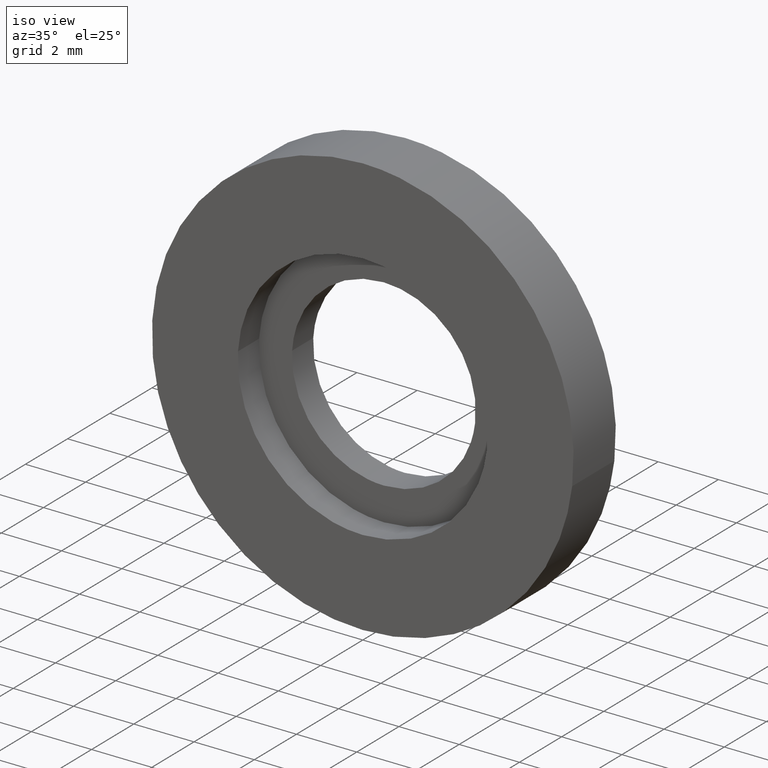
[diagram: clean part render]
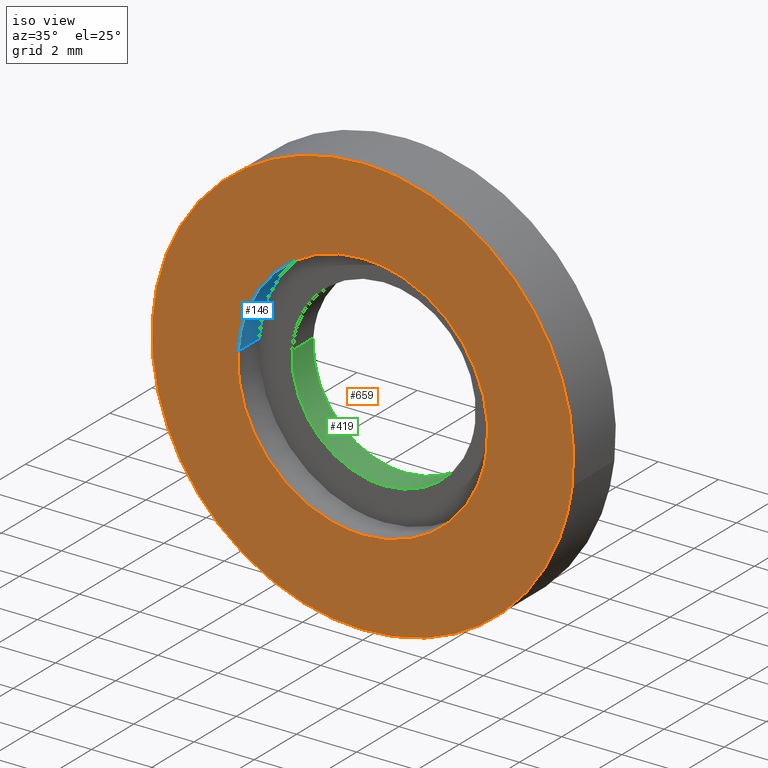
[diagram: same view with three faces highlighted in distinct colors, each labeled with its STEP entity id]
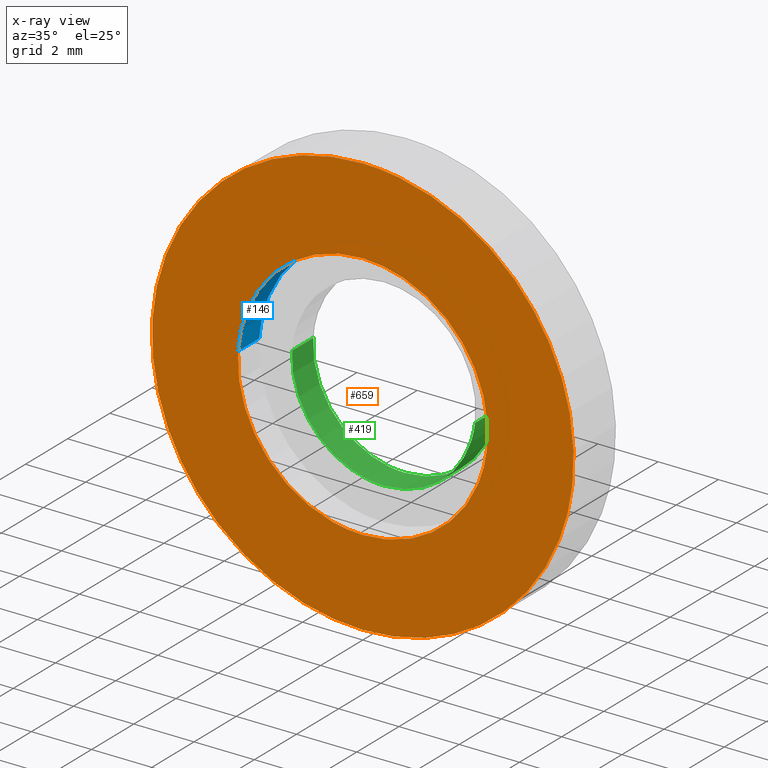
[diagram: x-ray of the same camera — body ghosted, the three highlighted faces saturated]
A machine part, iso view with three faces highlighted in distinct colors.
The next image is the same camera in x-ray (body ghosted, the three faces saturated) — at least one of them is partly hidden behind the body in this view.
Their STEP definitions:

[orange] entity #659 — the highlighted face is a freeform B-spline surface patch.
#85=CARTESIAN_POINT('',(4.120992077924378,-2.0,-0.489837619692699));
#86=VERTEX_POINT('',#85);
#92=CARTESIAN_POINT('',(0.0,-2.0,4.150002000000000));
#93=VERTEX_POINT('',#92);
#94=CARTESIAN_POINT('',(4.120992077924378,-2.000000000000000,-0.489837619692699));
#95=CARTESIAN_POINT('',(4.150002000000000,-2.000000000000000,-0.245777845111303));
#96=CARTESIAN_POINT('',(4.150002000000000,-2.0,-2.795203E-016));
#97=CARTESIAN_POINT('',(4.150002000000000,-2.0,4.150002000000000));
#98=CARTESIAN_POINT('',(0.0,-2.0,4.150002000000000));
#106=(BOUNDED_CURVE()B_SPLINE_CURVE(2,(#94,#95,#96,#97,#98),.UNSPECIFIED.,.F.,.U.)B_SPLINE_CURVE_WITH_KNOTS((3,2,3),(0.229562665862392,0.250000000000000,0.500000000000000),.UNSPECIFIED.)CURVE()GEOMETRIC_REPRESENTATION_ITEM()RATIONAL_B_SPLINE_CURVE((0.956027131195729,0.976056173681880,1.0,0.707106781186547,1.0))REPRESENTATION_ITEM(''));
#107=EDGE_CURVE('',#86,#93,#106,.T.);
#109=CARTESIAN_POINT('',(-4.142261716955668,-2.0,0.253346537813635));
#110=VERTEX_POINT('',#109);
#111=CARTESIAN_POINT('',(0.0,-2.0,4.150002000000000));
#112=CARTESIAN_POINT('',(-3.903936802249314,-2.000000000000000,4.150001999999999));
#113=CARTESIAN_POINT('',(-4.142261716955668,-2.000000000000000,0.253346537813635));
#121=(BOUNDED_CURVE()B_SPLINE_CURVE(2,(#111,#112,#113),.UNSPECIFIED.,.F.,.U.)B_SPLINE_CURVE_WITH_KNOTS((3,3),(0.500000000000000,0.739333171490855),.UNSPECIFIED.)CURVE()GEOMETRIC_REPRESENTATION_ITEM()RATIONAL_B_SPLINE_CURVE((1.0,0.719603748132846,0.976072490133807))REPRESENTATION_ITEM(''));
#122=EDGE_CURVE('',#93,#110,#121,.T.);
#196=CARTESIAN_POINT('',(0.0,-2.0,-4.150002000000000));
#197=VERTEX_POINT('',#196);
#198=CARTESIAN_POINT('',(-4.142261716955668,-2.000000000000000,0.253346537813635));
#199=CARTESIAN_POINT('',(-4.150002000000000,-2.000000000000000,0.126791510075858));
#200=CARTESIAN_POINT('',(-4.150002000000000,-2.0,-2.795203E-016));
#201=CARTESIAN_POINT('',(-4.150002000000000,-2.0,-4.150002000000000));
#202=CARTESIAN_POINT('',(0.0,-2.0,-4.150002000000000));
#210=(BOUNDED_CURVE()B_SPLINE_CURVE(2,(#198,#199,#200,#201,#202),.UNSPECIFIED.,.F.,.U.)B_SPLINE_CURVE_WITH_KNOTS((3,2,3),(0.739333171490855,0.750000000000000,1.0),.UNSPECIFIED.)CURVE()GEOMETRIC_REPRESENTATION_ITEM()RATIONAL_B_SPLINE_CURVE((0.976072490133807,0.987503033053701,1.0,0.707106781186547,1.0))REPRESENTATION_ITEM(''));
#211=EDGE_CURVE('',#110,#197,#210,.T.);
#213=CARTESIAN_POINT('',(0.0,-2.0,-4.150002000000000));
#214=CARTESIAN_POINT('',(3.685930283623234,-2.000000000000000,-4.150001999999999));
#215=CARTESIAN_POINT('',(4.120992077924378,-2.000000000000000,-0.489837619692699));
#223=(BOUNDED_CURVE()B_SPLINE_CURVE(2,(#213,#214,#215),.UNSPECIFIED.,.F.,.U.)B_SPLINE_CURVE_WITH_KNOTS((3,3),(0.0,0.229562665862392),.UNSPECIFIED.)CURVE()GEOMETRIC_REPRESENTATION_ITEM()RATIONAL_B_SPLINE_CURVE((1.0,0.731050607504668,0.956027131195729))REPRESENTATION_ITEM(''));
#224=EDGE_CURVE('',#197,#86,#223,.T.);
#476=CARTESIAN_POINT('',(-6.986943739989564,-2.0,0.427337307304794));
#477=VERTEX_POINT('',#476);
#483=CARTESIAN_POINT('',(0.0,-2.0,7.0));
#484=VERTEX_POINT('',#483);
#485=CARTESIAN_POINT('',(0.0,-2.0,7.0));
#486=CARTESIAN_POINT('',(-6.584944800046739,-2.0,6.999999999999999));
#487=CARTESIAN_POINT('',(-6.986943739989564,-2.0,0.427337307304794));
#495=(BOUNDED_CURVE()B_SPLINE_CURVE(2,(#485,#486,#487),.UNSPECIFIED.,.F.,.U.)B_SPLINE_CURVE_WITH_KNOTS((3,3),(0.500000000000000,0.739333023226263),.UNSPECIFIED.)CURVE()GEOMETRIC_REPRESENTATION_ITEM()RATIONAL_B_SPLINE_CURVE((1.0,0.719603921835620,0.976072172374189))REPRESENTATION_ITEM(''));
#496=EDGE_CURVE('',#484,#477,#495,.T.);
#498=CARTESIAN_POINT('',(6.951067204199181,-2.0,-0.826235270783800));
#499=VERTEX_POINT('',#498);
#500=CARTESIAN_POINT('',(6.951067204199181,-2.000000000000000,-0.826235270783800));
#501=CARTESIAN_POINT('',(7.0,-2.000000000000000,-0.414566628547696));
#502=CARTESIAN_POINT('',(7.0,-2.0,-2.795203E-016));
#503=CARTESIAN_POINT('',(6.999999999999999,-2.0,6.999999999999999));
#504=CARTESIAN_POINT('',(0.0,-2.0,7.0));
#512=(BOUNDED_CURVE()B_SPLINE_CURVE(2,(#500,#501,#502,#503,#504),.UNSPECIFIED.,.F.,.U.)B_SPLINE_CURVE_WITH_KNOTS((3,2,3),(0.229562579808786,0.250000000000000,0.500000000000000),.UNSPECIFIED.)CURVE()GEOMETRIC_REPRESENTATION_ITEM()RATIONAL_B_SPLINE_CURVE((0.956026962526900,0.976056072863809,1.0,0.707106781186547,1.0))REPRESENTATION_ITEM(''));
#513=EDGE_CURVE('',#499,#484,#512,.T.);
#557=CARTESIAN_POINT('',(0.0,-2.0,-7.0));
#558=VERTEX_POINT('',#557);
#559=CARTESIAN_POINT('',(0.0,-2.0,-7.0));
#560=CARTESIAN_POINT('',(6.217225619455447,-2.000000000000000,-7.0));
#561=CARTESIAN_POINT('',(6.951067204199181,-2.000000000000000,-0.826235270783800));
#569=(BOUNDED_CURVE()B_SPLINE_CURVE(2,(#559,#560,#561),.UNSPECIFIED.,.F.,.U.)B_SPLINE_CURVE_WITH_KNOTS((3,3),(0.0,0.229562579808786),.UNSPECIFIED.)CURVE()GEOMETRIC_REPRESENTATION_ITEM()RATIONAL_B_SPLINE_CURVE((1.0,0.731050708322738,0.956026962526900))REPRESENTATION_ITEM(''));
#570=EDGE_CURVE('',#558,#499,#569,.T.);
#572=CARTESIAN_POINT('',(-6.986943739989564,-2.0,0.427337307304794));
#573=CARTESIAN_POINT('',(-7.0,-2.000000000000000,0.213868104908519));
#574=CARTESIAN_POINT('',(-7.0,-2.0,-2.795203E-016));
#575=CARTESIAN_POINT('',(-6.999999999999999,-2.0,-6.999999999999999));
#576=CARTESIAN_POINT('',(0.0,-2.0,-7.0));
#584=(BOUNDED_CURVE()B_SPLINE_CURVE(2,(#572,#573,#574,#575,#576),.UNSPECIFIED.,.F.,.U.)B_SPLINE_CURVE_WITH_KNOTS((3,2,3),(0.739333023226263,0.750000000000000,1.0),.UNSPECIFIED.)CURVE()GEOMETRIC_REPRESENTATION_ITEM()RATIONAL_B_SPLINE_CURVE((0.976072172374189,0.987502859350927,1.0,0.707106781186547,1.0))REPRESENTATION_ITEM(''));
#585=EDGE_CURVE('',#477,#558,#584,.T.);
#642=CARTESIAN_POINT('',(-7.699130124775172,-2.0,7.699299972865284));
#643=CARTESIAN_POINT('',(-7.699130124775172,-2.0,-7.699300348374545));
#644=CARTESIAN_POINT('',(7.699172682491543,-2.0,7.699299972865285));
#645=CARTESIAN_POINT('',(7.699172682491543,-2.0,-7.699300348374545));
#646=B_SPLINE_SURFACE_WITH_KNOTS('',1,1,((#642,#644),(#643,#645)),.UNSPECIFIED.,.F.,.F.,.U.,(2,2),(2,2),(0.0,15.398600321239829),(0.0,15.398302807266720),.UNSPECIFIED.);
#647=ORIENTED_EDGE('',*,*,#570,.T.);
#648=ORIENTED_EDGE('',*,*,#513,.T.);
#649=ORIENTED_EDGE('',*,*,#496,.T.);
#650=ORIENTED_EDGE('',*,*,#585,.T.);
#651=EDGE_LOOP('',(#647,#648,#649,#650));
#652=FACE_OUTER_BOUND('',#651,.T.);
#653=ORIENTED_EDGE('',*,*,#122,.F.);
#654=ORIENTED_EDGE('',*,*,#107,.F.);
#655=ORIENTED_EDGE('',*,*,#224,.F.);
#656=ORIENTED_EDGE('',*,*,#211,.F.);
#657=EDGE_LOOP('',(#653,#654,#655,#656));
#658=FACE_BOUND('',#657,.T.);
#659=ADVANCED_FACE('',(#652,#658),#646,.T.);

[blue] entity #146 — the highlighted face is a freeform B-spline surface patch.
#44=CARTESIAN_POINT('',(4.120991520428268,-0.975000000000000,-0.489842309894017));
#45=CARTESIAN_POINT('',(4.135010596886946,-0.975000000000000,-0.371901303077065));
#46=CARTESIAN_POINT('',(4.142261409720344,-0.975000000000000,-0.253351561166736));
#47=CARTESIAN_POINT('',(4.395612970887080,-0.975000000000000,3.888909848553608));
#48=CARTESIAN_POINT('',(0.253351561166736,-0.975000000000000,4.142261409720344));
#49=CARTESIAN_POINT('',(-3.888909848553608,-0.975000000000000,4.395612970887080));
#50=CARTESIAN_POINT('',(-4.142261409720344,-0.975000000000000,0.253351561166735));
#51=CARTESIAN_POINT('',(4.120991520428268,-2.025624999999999,-0.489842309894017));
#52=CARTESIAN_POINT('',(4.135010596886946,-2.025625000000000,-0.371901303077065));
#53=CARTESIAN_POINT('',(4.142261409720344,-2.025625000000000,-0.253351561166736));
#54=CARTESIAN_POINT('',(4.395612970887080,-2.025624999999999,3.888909848553608));
#55=CARTESIAN_POINT('',(0.253351561166736,-2.025625000000000,4.142261409720344));
#56=CARTESIAN_POINT('',(-3.888909848553608,-2.025624999999999,4.395612970887080));
#57=CARTESIAN_POINT('',(-4.142261409720344,-2.025625000000000,0.253351561166735));
#65=(BOUNDED_SURFACE()B_SPLINE_SURFACE(2,1,((#44,#51),(#45,#52),(#46,#53),(#47,#54),(#48,#55),(#49,#56),(#50,#57)),.UNSPECIFIED.,.F.,.F.,.U.)B_SPLINE_SURFACE_WITH_KNOTS((3,2,2,3),(2,2),(0.0,0.275037937964076,7.150986387065953,14.026934836167831),(0.0,1.0),.UNSPECIFIED.)GEOMETRIC_REPRESENTATION_ITEM()RATIONAL_B_SPLINE_SURFACE(((0.977505800795127,0.977505800795127),(0.988284271247462,0.988284271247462),(1.0,1.0),(0.707106781186548,0.707106781186548),(1.0,1.0),(0.707106781186548,0.707106781186548),(1.0,1.0)))REPRESENTATION_ITEM('')SURFACE());
#66=CARTESIAN_POINT('',(4.120992084721502,-1.000000000000042,-0.489837562508097));
#67=VERTEX_POINT('',#66);
#68=CARTESIAN_POINT('',(0.0,-1.0,4.150002000000000));
#69=VERTEX_POINT('',#68);
#70=CARTESIAN_POINT('',(4.120992084721502,-1.000000000000042,-0.489837562508097));
#71=CARTESIAN_POINT('',(4.150002000000001,-1.0,-0.245777816216738));
#72=CARTESIAN_POINT('',(4.150002000000000,-1.0,-2.795203E-016));
#73=CARTESIAN_POINT('',(4.150002000000000,-1.0,4.150002000000000));
#74=CARTESIAN_POINT('',(0.0,-1.0,4.150002000000000));
#82=(BOUNDED_CURVE()B_SPLINE_CURVE(2,(#70,#71,#72,#73,#74),.UNSPECIFIED.,.F.,.U.)B_SPLINE_CURVE_WITH_KNOTS((3,2,3),(0.229562668207552,0.250000000000000,0.500000000000000),.UNSPECIFIED.)CURVE()GEOMETRIC_REPRESENTATION_ITEM()RATIONAL_B_SPLINE_CURVE((0.956027135792348,0.976056176429406,1.0,0.707106781186547,1.0))REPRESENTATION_ITEM(''));
#83=EDGE_CURVE('',#67,#69,#82,.T.);
#84=ORIENTED_EDGE('',*,*,#83,.F.);
#85=CARTESIAN_POINT('',(4.120992077924378,-2.0,-0.489837619692699));
#86=VERTEX_POINT('',#85);
#87=CARTESIAN_POINT('',(4.120992084721502,-1.000000000000042,-0.489837562508097));
#88=CARTESIAN_POINT('',(4.120992077924378,-2.0,-0.489837619692699));
#89=QUASI_UNIFORM_CURVE('',1,(#87,#88),.UNSPECIFIED.,.F.,.U.);
#90=EDGE_CURVE('',#67,#86,#89,.T.);
#91=ORIENTED_EDGE('',*,*,#90,.T.);
#92=CARTESIAN_POINT('',(0.0,-2.0,4.150002000000000));
#93=VERTEX_POINT('',#92);
#94=CARTESIAN_POINT('',(4.120992077924378,-2.000000000000000,-0.489837619692699));
#95=CARTESIAN_POINT('',(4.150002000000000,-2.000000000000000,-0.245777845111303));
#96=CARTESIAN_POINT('',(4.150002000000000,-2.0,-2.795203E-016));
#97=CARTESIAN_POINT('',(4.150002000000000,-2.0,4.150002000000000));
#98=CARTESIAN_POINT('',(0.0,-2.0,4.150002000000000));
#106=(BOUNDED_CURVE()B_SPLINE_CURVE(2,(#94,#95,#96,#97,#98),.UNSPECIFIED.,.F.,.U.)B_SPLINE_CURVE_WITH_KNOTS((3,2,3),(0.229562665862392,0.250000000000000,0.500000000000000),.UNSPECIFIED.)CURVE()GEOMETRIC_REPRESENTATION_ITEM()RATIONAL_B_SPLINE_CURVE((0.956027131195729,0.976056173681880,1.0,0.707106781186547,1.0))REPRESENTATION_ITEM(''));
#107=EDGE_CURVE('',#86,#93,#106,.T.);
#108=ORIENTED_EDGE('',*,*,#107,.T.);
#109=CARTESIAN_POINT('',(-4.142261716955668,-2.0,0.253346537813635));
#110=VERTEX_POINT('',#109);
#111=CARTESIAN_POINT('',(0.0,-2.0,4.150002000000000));
#112=CARTESIAN_POINT('',(-3.903936802249314,-2.000000000000000,4.150001999999999));
#113=CARTESIAN_POINT('',(-4.142261716955668,-2.000000000000000,0.253346537813635));
#121=(BOUNDED_CURVE()B_SPLINE_CURVE(2,(#111,#112,#113),.UNSPECIFIED.,.F.,.U.)B_SPLINE_CURVE_WITH_KNOTS((3,3),(0.500000000000000,0.739333171490855),.UNSPECIFIED.)CURVE()GEOMETRIC_REPRESENTATION_ITEM()RATIONAL_B_SPLINE_CURVE((1.0,0.719603748132846,0.976072490133807))REPRESENTATION_ITEM(''));
#122=EDGE_CURVE('',#93,#110,#121,.T.);
#123=ORIENTED_EDGE('',*,*,#122,.T.);
#124=CARTESIAN_POINT('',(-4.142261720703038,-0.999999999999970,0.253346476542214));
#125=VERTEX_POINT('',#124);
#126=CARTESIAN_POINT('',(-4.142261720703038,-0.999999999999970,0.253346476542214));
#127=CARTESIAN_POINT('',(-4.142261716955668,-2.0,0.253346537813635));
#128=QUASI_UNIFORM_CURVE('',1,(#126,#127),.UNSPECIFIED.,.F.,.U.);
#129=EDGE_CURVE('',#125,#110,#128,.T.);
#130=ORIENTED_EDGE('',*,*,#129,.F.);
#131=CARTESIAN_POINT('',(0.0,-1.0,4.150002000000000));
#132=CARTESIAN_POINT('',(-3.903936860103388,-1.0,4.150001999999998));
#133=CARTESIAN_POINT('',(-4.142261720703038,-0.999999999999970,0.253346476542214));
#141=(BOUNDED_CURVE()B_SPLINE_CURVE(2,(#131,#132,#133),.UNSPECIFIED.,.F.,.U.)B_SPLINE_CURVE_WITH_KNOTS((3,3),(0.500000000000000,0.739333174043130),.UNSPECIFIED.)CURVE()GEOMETRIC_REPRESENTATION_ITEM()RATIONAL_B_SPLINE_CURVE((1.0,0.719603745142670,0.976072495603829))REPRESENTATION_ITEM(''));
#142=EDGE_CURVE('',#69,#125,#141,.T.);
#143=ORIENTED_EDGE('',*,*,#142,.F.);
#144=EDGE_LOOP('',(#84,#91,#108,#123,#130,#143));
#145=FACE_OUTER_BOUND('',#144,.T.);
#146=ADVANCED_FACE('',(#145),#65,.F.);

[green] entity #419 — the highlighted face is a freeform B-spline surface patch.
#256=CARTESIAN_POINT('',(3.028678228583696,-0.999999999999980,-0.360002899574624));
#257=VERTEX_POINT('',#256);
#275=CARTESIAN_POINT('',(-3.044310423648793,-0.999999999999929,0.186193298596548));
#276=VERTEX_POINT('',#275);
#290=CARTESIAN_POINT('',(-3.044310420114468,-5.819705E-016,0.186193356385155));
#291=VERTEX_POINT('',#290);
#292=CARTESIAN_POINT('',(-3.044310420114468,-5.819705E-016,0.186193356385155));
#293=CARTESIAN_POINT('',(-3.044310423648793,-0.999999999999929,0.186193298596548));
#294=QUASI_UNIFORM_CURVE('',1,(#292,#293),.UNSPECIFIED.,.F.,.U.);
#295=EDGE_CURVE('',#291,#276,#294,.T.);
#312=CARTESIAN_POINT('',(3.028678226535830,-5.818179E-016,-0.360002916803237));
#313=VERTEX_POINT('',#312);
#329=CARTESIAN_POINT('',(3.028678226535830,-5.818179E-016,-0.360002916803237));
#330=CARTESIAN_POINT('',(3.028678228583696,-0.999999999999980,-0.360002899574624));
#331=QUASI_UNIFORM_CURVE('',1,(#329,#330),.UNSPECIFIED.,.F.,.U.);
#332=EDGE_CURVE('',#313,#257,#331,.T.);
#337=CARTESIAN_POINT('',(-3.044310137051895,0.024999999999999,0.186197984532774));
#338=CARTESIAN_POINT('',(-3.230508121584670,0.024999999999999,-2.858112152519122));
#339=CARTESIAN_POINT('',(-0.186197984532774,0.024999999999999,-3.044310137051896));
#340=CARTESIAN_POINT('',(2.688706765516987,0.024999999999999,-3.220146844248012));
#341=CARTESIAN_POINT('',(3.028678062399655,0.024999999999999,-0.360004297668879));
#342=CARTESIAN_POINT('',(-3.044310137051895,-1.025625000000000,0.186197984532774));
#343=CARTESIAN_POINT('',(-3.230508121584670,-1.025625000000000,-2.858112152519122));
#344=CARTESIAN_POINT('',(-0.186197984532774,-1.025625000000000,-3.044310137051896));
#345=CARTESIAN_POINT('',(2.688706765516987,-1.025625000000000,-3.220146844248012));
#346=CARTESIAN_POINT('',(3.028678062399655,-1.025625000000000,-0.360004297668879));
#354=(BOUNDED_SURFACE()B_SPLINE_SURFACE(2,1,((#337,#342),(#338,#343),(#339,#344),(#340,#345),(#341,#346)),.UNSPECIFIED.,.F.,.F.,.U.)B_SPLINE_SURFACE_WITH_KNOTS((3,2,3),(2,2),(0.0,5.053403804097509,9.904671456031117),(0.0,1.0),.UNSPECIFIED.)GEOMETRIC_REPRESENTATION_ITEM()RATIONAL_B_SPLINE_SURFACE(((1.0,1.0),(0.707106781186548,0.707106781186548),(1.0,1.0),(0.718822509939086,0.718822509939086),(0.977505800795127,0.977505800795127)))REPRESENTATION_ITEM('')SURFACE());
#355=CARTESIAN_POINT('',(0.0,-1.0,-3.049999000000000));
#356=VERTEX_POINT('',#355);
#357=CARTESIAN_POINT('',(0.0,-1.0,-3.049999000000000));
#358=CARTESIAN_POINT('',(2.708932675273653,-1.0,-3.049999000000000));
#359=CARTESIAN_POINT('',(3.028678228583697,-0.999999999999980,-0.360002899574624));
#367=(BOUNDED_CURVE()B_SPLINE_CURVE(2,(#357,#358,#359),.UNSPECIFIED.,.F.,.U.)B_SPLINE_CURVE_WITH_KNOTS((3,3),(0.0,0.229562551530697),.UNSPECIFIED.)CURVE()GEOMETRIC_REPRESENTATION_ITEM()RATIONAL_B_SPLINE_CURVE((1.0,0.731050741452580,0.956026907100639))REPRESENTATION_ITEM(''));
#368=EDGE_CURVE('',#356,#257,#367,.T.);
#369=ORIENTED_EDGE('',*,*,#368,.T.);
#370=ORIENTED_EDGE('',*,*,#332,.F.);
#371=CARTESIAN_POINT('',(0.0,-5.602572E-016,-3.049999000000000));
#372=VERTEX_POINT('',#371);
#373=CARTESIAN_POINT('',(0.0,-5.602572E-016,-3.049999000000000));
#374=CARTESIAN_POINT('',(2.708932659755432,-5.602572E-016,-3.049998999999999));
#375=CARTESIAN_POINT('',(3.028678226535831,-5.818179E-016,-0.360002916803237));
#383=(BOUNDED_CURVE()B_SPLINE_CURVE(2,(#373,#374,#375),.UNSPECIFIED.,.F.,.U.)B_SPLINE_CURVE_WITH_KNOTS((3,3),(0.0,0.229562550569323),.UNSPECIFIED.)CURVE()GEOMETRIC_REPRESENTATION_ITEM()RATIONAL_B_SPLINE_CURVE((1.0,0.731050742578900,0.956026905216306))REPRESENTATION_ITEM(''));
#384=EDGE_CURVE('',#372,#313,#383,.T.);
#385=ORIENTED_EDGE('',*,*,#384,.F.);
#386=CARTESIAN_POINT('',(-3.044310420114468,-5.819705E-016,0.186193356385155));
#387=CARTESIAN_POINT('',(-3.049999000000000,-5.602572E-016,0.093183576945955));
#388=CARTESIAN_POINT('',(-3.049999000000000,-5.602572E-016,-2.795203E-016));
#389=CARTESIAN_POINT('',(-3.049998999999999,-5.602572E-016,-3.049998999999999));
#390=CARTESIAN_POINT('',(0.0,-5.602572E-016,-3.049999000000000));
#398=(BOUNDED_CURVE()B_SPLINE_CURVE(2,(#386,#387,#388,#389,#390),.UNSPECIFIED.,.F.,.U.)B_SPLINE_CURVE_WITH_KNOTS((3,2,3),(0.739333224558268,0.750000000000000,1.0),.UNSPECIFIED.)CURVE()GEOMETRIC_REPRESENTATION_ITEM()RATIONAL_B_SPLINE_CURVE((0.976072603867611,0.987503095226043,1.0,0.707106781186547,1.0))REPRESENTATION_ITEM(''));
#399=EDGE_CURVE('',#291,#372,#398,.T.);
#400=ORIENTED_EDGE('',*,*,#399,.F.);
#401=ORIENTED_EDGE('',*,*,#295,.T.);
#402=CARTESIAN_POINT('',(-3.044310423648793,-0.999999999999929,0.186193298596548));
#403=CARTESIAN_POINT('',(-3.049999000000000,-1.0,0.093183547970642));
#404=CARTESIAN_POINT('',(-3.049999000000000,-1.0,-2.795203E-016));
#405=CARTESIAN_POINT('',(-3.049998999999999,-1.0,-3.049998999999999));
#406=CARTESIAN_POINT('',(0.0,-1.0,-3.049999000000000));
#414=(BOUNDED_CURVE()B_SPLINE_CURVE(2,(#402,#403,#404,#405,#406),.UNSPECIFIED.,.F.,.U.)B_SPLINE_CURVE_WITH_KNOTS((3,2,3),(0.739333227833638,0.750000000000000,1.0),.UNSPECIFIED.)CURVE()GEOMETRIC_REPRESENTATION_ITEM()RATIONAL_B_SPLINE_CURVE((0.976072610887369,0.987503099063378,1.0,0.707106781186547,1.0))REPRESENTATION_ITEM(''));
#415=EDGE_CURVE('',#276,#356,#414,.T.);
#416=ORIENTED_EDGE('',*,*,#415,.T.);
#417=EDGE_LOOP('',(#369,#370,#385,#400,#401,#416));
#418=FACE_OUTER_BOUND('',#417,.T.);
#419=ADVANCED_FACE('',(#418),#354,.F.);